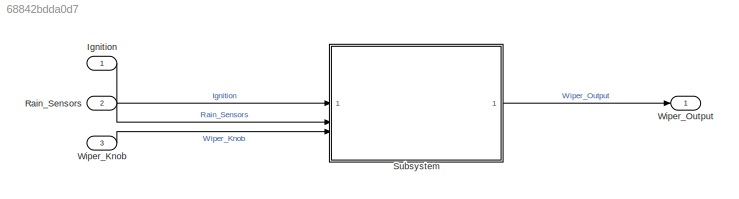
MODEL slx_68842bdda0d7
KIND model
CONFIG AbsTol = auto
CONFIG EnableMultiTasking = off
CONFIG FixedStep = 0.01
CONFIG MaxStep = auto
CONFIG MinStep = auto
CONFIG RelTol = 1e-3
CONFIG SampleTimeConstraint = Unconstrained
CONFIG SolverName = FixedStepAuto
CONFIG StartTime = 0.0
CONFIG StopTime = 10.0
BLOCK [Inport] Ignition
BLOCK [Inport] Rain_Sensors
  Port = 2
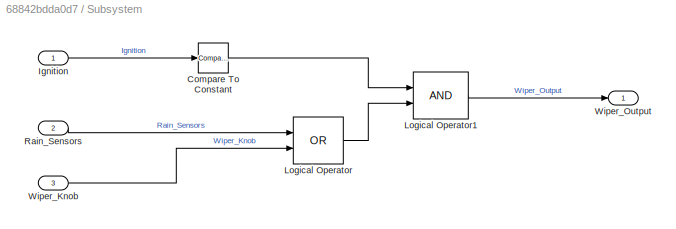
BLOCK [SubSystem] Subsystem
BLOCK [Reference] Subsystem/Compare To Constant  REF=simulink/Logic and Bit
Operations/Compare
To Constant
  SourceBlock = simulink/Logic and Bit\nOperations/Compare\nTo Constant
  SourceType = Compare To Constant
BLOCK [Inport] Subsystem/Ignition
BLOCK [Logic] Subsystem/Logical Operator
  AllPortsSameDT = off
  Operator = OR
  OutDataTypeStr = boolean
BLOCK [Logic] Subsystem/Logical Operator1
  AllPortsSameDT = off
  OutDataTypeStr = boolean
BLOCK [Inport] Subsystem/Rain_Sensors
  Port = 2
BLOCK [Inport] Subsystem/Wiper_Knob
  Port = 3
BLOCK [Outport] Subsystem/Wiper_Output
BLOCK [Inport] Wiper_Knob
  Port = 3
BLOCK [Outport] Wiper_Output
LINE Ignition:1 -> Subsystem:1
LINE Rain_Sensors:1 -> Subsystem:2
LINE Subsystem/Compare To Constant:1 -> Subsystem/Logical Operator1:1
LINE Subsystem/Ignition:1 -> Subsystem/Compare To Constant:1
LINE Subsystem/Logical Operator1:1 -> Subsystem/Wiper_Output:1
LINE Subsystem/Logical Operator:1 -> Subsystem/Logical Operator1:2
LINE Subsystem/Rain_Sensors:1 -> Subsystem/Logical Operator:1
LINE Subsystem/Wiper_Knob:1 -> Subsystem/Logical Operator:2
LINE Subsystem:1 -> Wiper_Output:1
LINE Wiper_Knob:1 -> Subsystem:3
